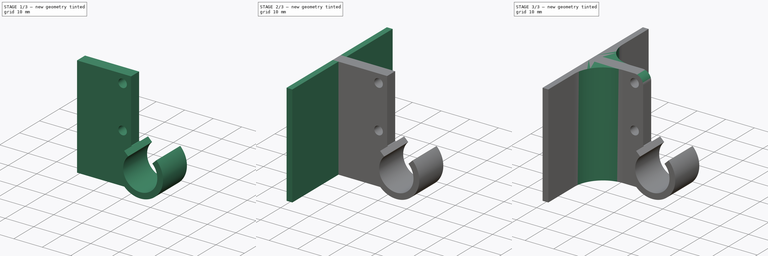
[diagram: build sequence overview — one tinted view per stage of 3, left to right]
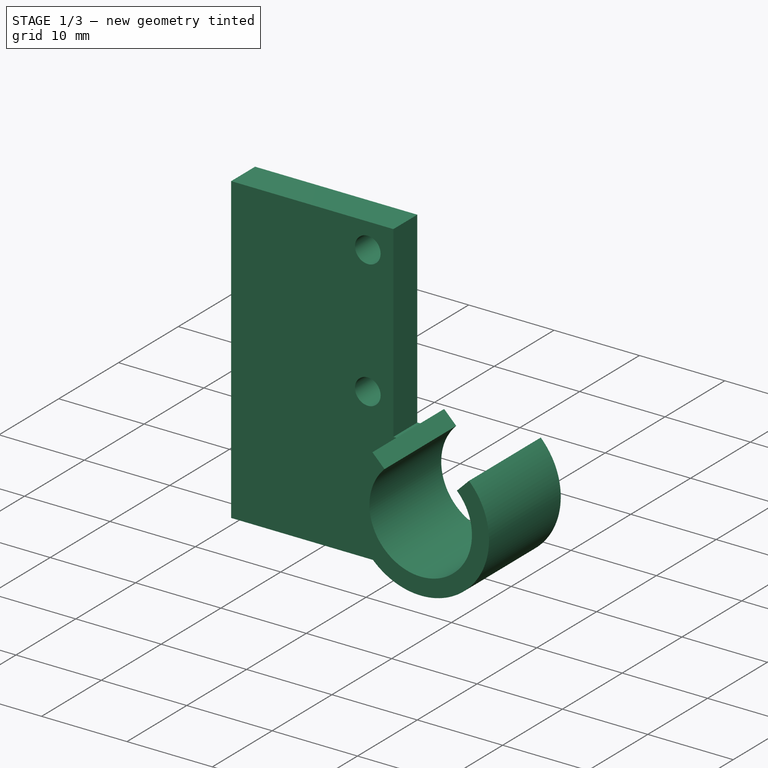
[diagram: stage 1 of 3 — iso view after this stage's code; geometry added in this stage tinted green]
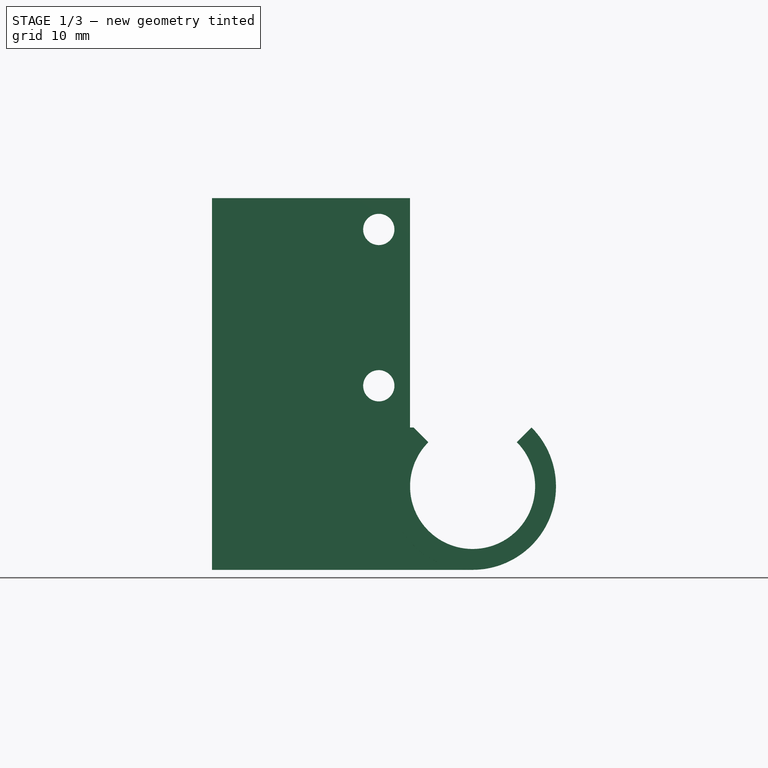
[diagram: stage 1 of 3 — front view after this stage's code; geometry added in this stage tinted green]
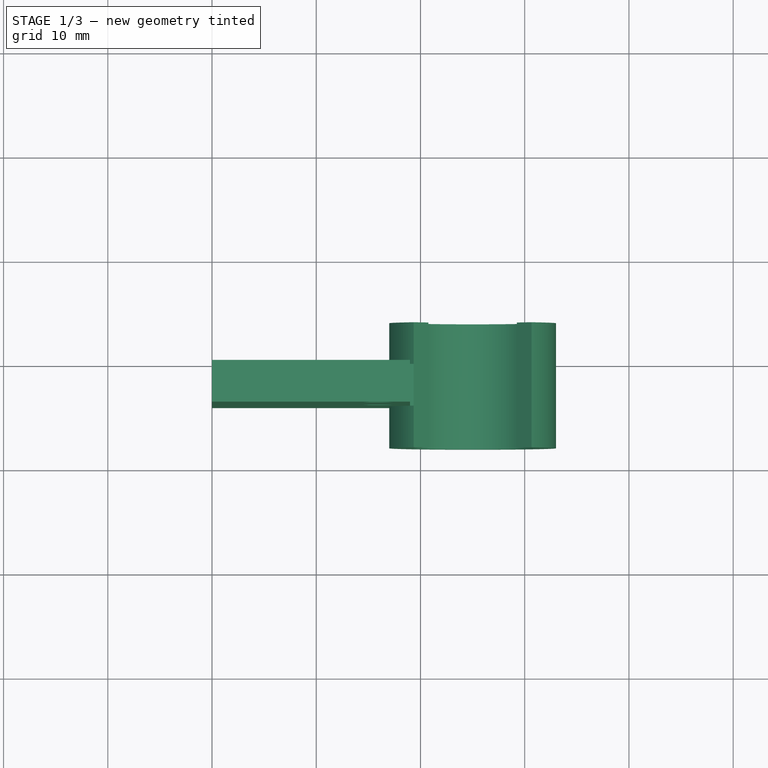
[diagram: stage 1 of 3 — top view after this stage's code; geometry added in this stage tinted green]
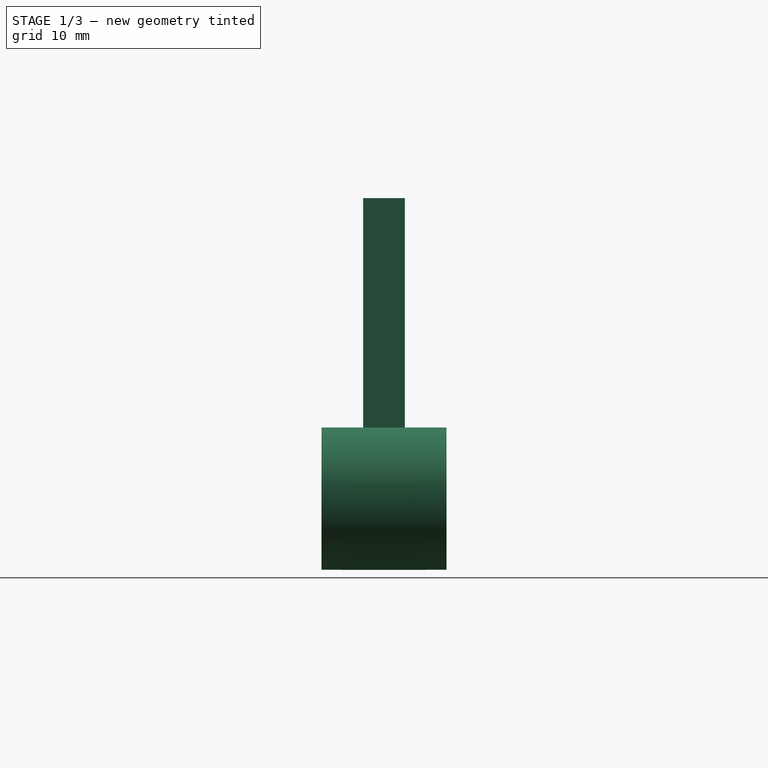
[diagram: stage 1 of 3 — right view after this stage's code; geometry added in this stage tinted green]
FCSTD DOCUMENT  (FreeCAD 0.16R6707 (Git))
Label: Laser_Greyscale_Mount
License: All rights reserved
LicenseURL: http://en.wikipedia.org/wiki/All_rights_reserved
objects: Sketcher::SketchObject×3, PartDesign::Pad×3, PartDesign::Fillet×2
note: 11 computed .brp shape members not serialized (recipe doc carries the construction recipe); baked Part::Feature solids carry a one-line shape summary decoded from their .brp

FEATURE [Sketcher::SketchObject] Sketch
  Placement = pos=(0,0,0) rot=(1,0,0;1.5708rad)
  sketch-geometry (13):
    g0: ArcOfCircle CenterX=25 CenterY=8 CenterZ=0 NormalX=0 NormalY=0 NormalZ=1 Radius=6 StartAngle=2.35619 EndAngle=7.06858
    g1: Circle CenterX=16 CenterY=32.6569 CenterZ=0 NormalX=0 NormalY=0 NormalZ=1 Radius=1.5
    g2: Circle CenterX=16 CenterY=17.6569 CenterZ=0 NormalX=0 NormalY=0 NormalZ=1 Radius=1.5
    g3: LineSegment [constr] StartX=16 StartY=32.6569 StartZ=0 EndX=16 EndY=17.6569 EndZ=0
    g4: LineSegment StartX=0 StartY=35.6569 StartZ=0 EndX=19 EndY=35.6569 EndZ=0
    g5: LineSegment StartX=19 StartY=35.6569 StartZ=0 EndX=19 EndY=13.6569 EndZ=0
    g6: LineSegment StartX=19 StartY=13.6569 StartZ=0 EndX=19.3431 EndY=13.6569 EndZ=0
    g7: LineSegment StartX=19.3431 StartY=13.6569 StartZ=0 EndX=20.7574 EndY=12.2426 EndZ=0
    g8: ArcOfCircle CenterX=25 CenterY=8 CenterZ=0 NormalX=0 NormalY=0 NormalZ=1 Radius=8 StartAngle=4.71239 EndAngle=7.06858
    g9: LineSegment StartX=30.6569 StartY=13.6569 StartZ=0 EndX=29.2426 EndY=12.2426 EndZ=0
    g10: LineSegment StartX=0 StartY=35.6569 StartZ=0 EndX=0 EndY=0 EndZ=0
    g11: LineSegment StartX=0 StartY=0 StartZ=0 EndX=25 EndY=0 EndZ=0
    g12: LineSegment [constr] StartX=20.7574 StartY=12.2426 StartZ=0 EndX=29.2426 EndY=12.2426 EndZ=0
  constraints (40):
    c: Radius(g0) = 6
    c: Coincident(g3,g1)
    c: Vertical(g3)
    c: Coincident(g2,g3)
    c: Equal(g2,g1)
    c: Radius(g1) = 1.5
    c: Distance(g2,g1) = 15
    c: DistanceX(g2,g0) = 9
    c: PointOnObject(g4,g-2)
    c: Horizontal(g4)
    c: Coincident(g4,g5)
    c: Vertical(g5)
    c: Coincident(g5,g6)
    c: Horizontal(g6)
    c: Coincident(g6,g7)
    c: Coincident(g0,g7)
    c: Perpendicular(g0,g7)
    c: Coincident(g8,g0)
    c: PointOnObject(g8,g-1)
    c: Radius(g8) = 8
    c: Coincident(g9,g8)
    c: Coincident(g0,g9)
    c: Perpendicular(g0,g9)
    c: DistanceX(g-1,g0) = 25
    c: DistanceY(g1,g4) = 3
    c: DistanceX(g1,g4) = 3
    c: Vertical(g10)
    c: Coincident(g11,g10)
    c: Horizontal(g11)
    c: Coincident(g11,g8)
    c: Coincident(g10,g-1)
    c: Coincident(g10,g4)
    c: Tangent(g11,g8)
    c: DistanceY(g5,g2) = 4
    c: Equal(g9,g7)
    c: DistanceY(g10,g10) = 35.6569
    c: Angle(g9,g7) = 1.5708
    c: Coincident(g12,g0)
    c: Coincident(g12,g0)
    c: Horizontal(g12)
FEATURE [PartDesign::Pad] Pad
  Length = 4
  Length2 = 100
  Placement = pos=(0,0,0) rot=(1,0,0;1.5708rad)
  Sketch = -> Sketch
  Type = 0
FEATURE [Sketcher::SketchObject] Sketch001
  ExternalGeometry = -> [Pad]
  Placement = pos=(0,-4,0) rot=(1,0,0;1.5708rad)
  Support = -> Pad [Face13]
  sketch-geometry (4):
    g0: ArcOfCircle CenterX=25 CenterY=8 CenterZ=0 NormalX=0 NormalY=0 NormalZ=1 Radius=6 StartAngle=2.35619 EndAngle=7.06858
    g1: ArcOfCircle CenterX=25 CenterY=8 CenterZ=0 NormalX=0 NormalY=0 NormalZ=1 Radius=8 StartAngle=2.35619 EndAngle=7.06858
    g2: LineSegment StartX=20.7574 StartY=12.2426 StartZ=0 EndX=19.3431 EndY=13.6569 EndZ=0
    g3: LineSegment StartX=30.6569 StartY=13.6569 StartZ=0 EndX=29.2426 EndY=12.2426 EndZ=0
  constraints (10):
    c: Coincident(g0,g-5)
    c: Coincident(g0,g-3)
    c: Coincident(g1,g0)
    c: Coincident(g1,g-5)
    c: Coincident(g2,g0)
    c: Coincident(g3,g1)
    c: Coincident(g3,g0)
    c: Coincident(g2,g1)
    c: Parallel(g-4,g3)
    c: Parallel(g2,g-3)
FEATURE [PartDesign::Pad] Pad001
  Length = 4
  Length2 = 8
  Placement = pos=(0,0,0) rot=(1,0,0;1.5708rad)
  Sketch = -> Sketch001
  Type = 4
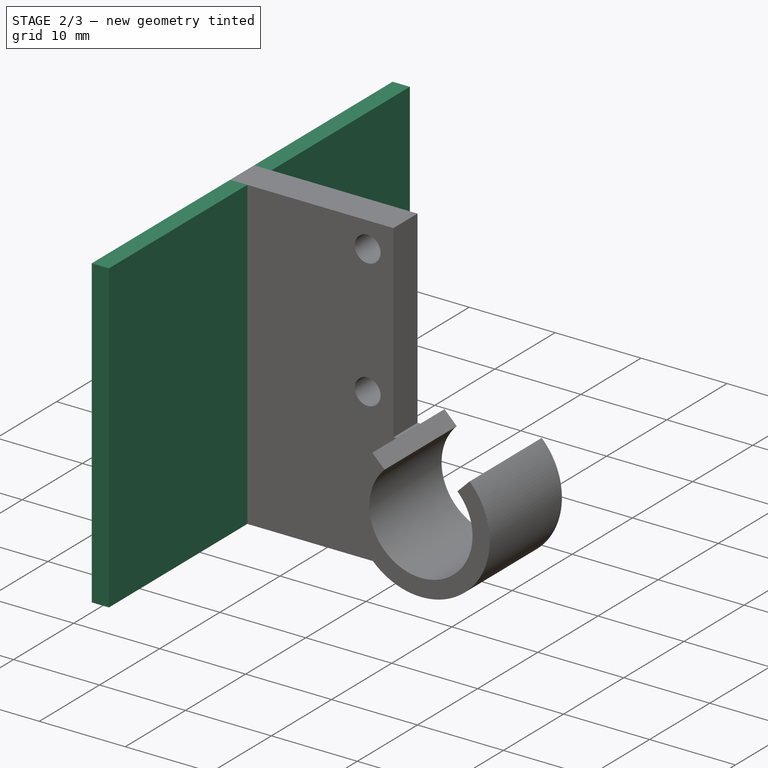
[diagram: stage 2 of 3 — iso view after this stage's code; geometry added in this stage tinted green]
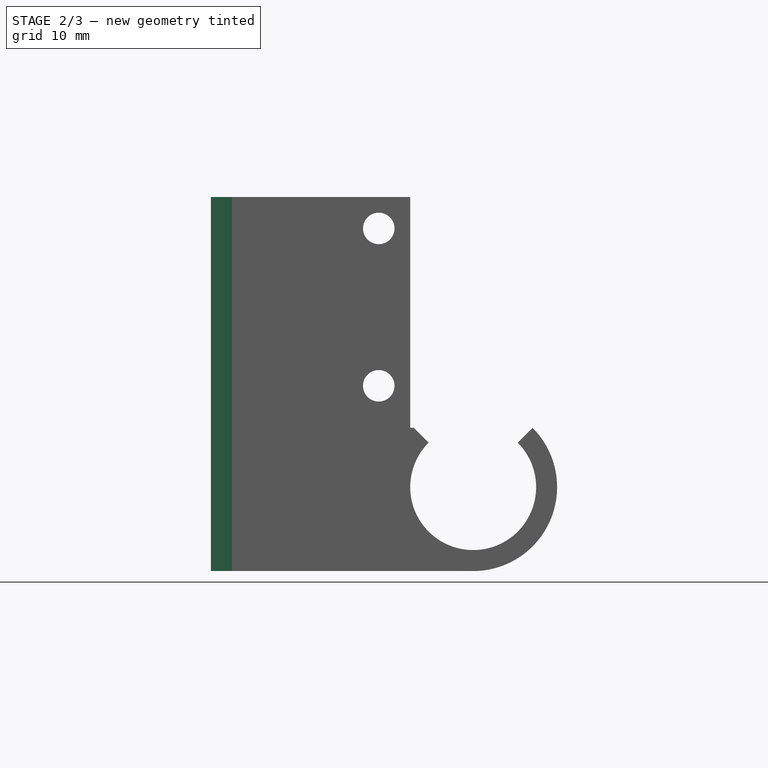
[diagram: stage 2 of 3 — front view after this stage's code; geometry added in this stage tinted green]
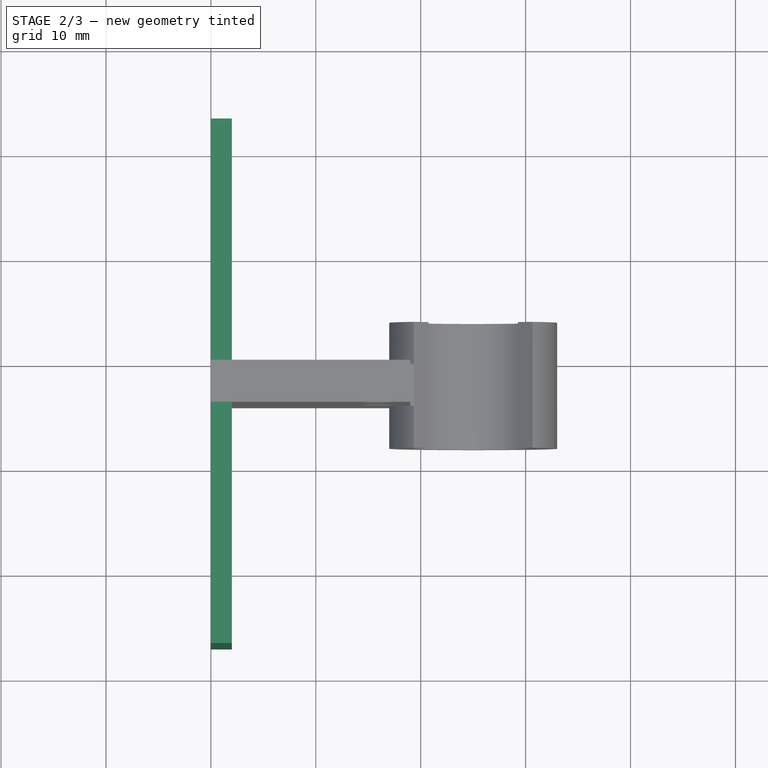
[diagram: stage 2 of 3 — top view after this stage's code; geometry added in this stage tinted green]
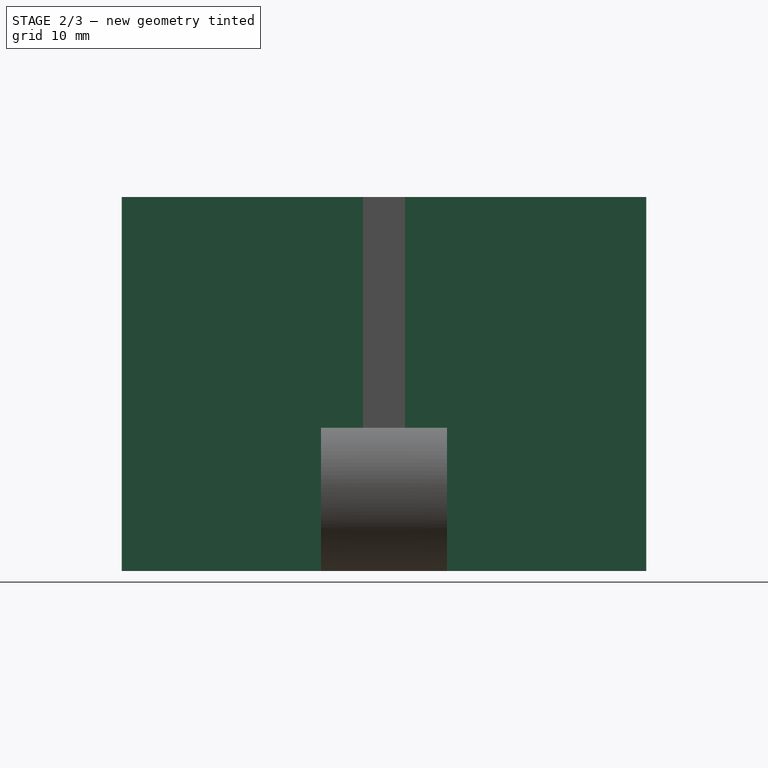
[diagram: stage 2 of 3 — right view after this stage's code; geometry added in this stage tinted green]
FEATURE [Sketcher::SketchObject] Sketch002
  ExternalGeometry = -> [Pad001]
  Placement = pos=(0,0,0) rot=(0.707107,0,-0.707107;3.14159rad)
  Support = -> Pad001 [Face2]
  sketch-geometry (4):
    g0: LineSegment StartX=0 StartY=-23 StartZ=0 EndX=-35.6569 EndY=-23 EndZ=0
    g1: LineSegment StartX=-35.6569 StartY=-23 StartZ=0 EndX=-35.6569 EndY=27 EndZ=0
    g2: LineSegment StartX=-35.6569 StartY=27 StartZ=0 EndX=0 EndY=27 EndZ=0
    g3: LineSegment StartX=0 StartY=27 StartZ=0 EndX=0 EndY=-23 EndZ=0
  constraints (12):
    c: Coincident(g0,g1)
    c: Coincident(g1,g2)
    c: Coincident(g2,g3)
    c: Coincident(g3,g0)
    c: Horizontal(g0)
    c: Horizontal(g2)
    c: Vertical(g1)
    c: Vertical(g3)
    c: PointOnObject(g0,g-2)
    c: PointOnObject(g-3,g1)
    c: Distance(g3) = 50
    c: Distance(g-1,g0) = 23
FEATURE [PartDesign::Pad] Pad002
  Length = 2
  Length2 = 100
  Placement = pos=(0,0,0) rot=(1,0,0;1.5708rad)
  Reversed = true
  Sketch = -> Sketch002
  Type = 0
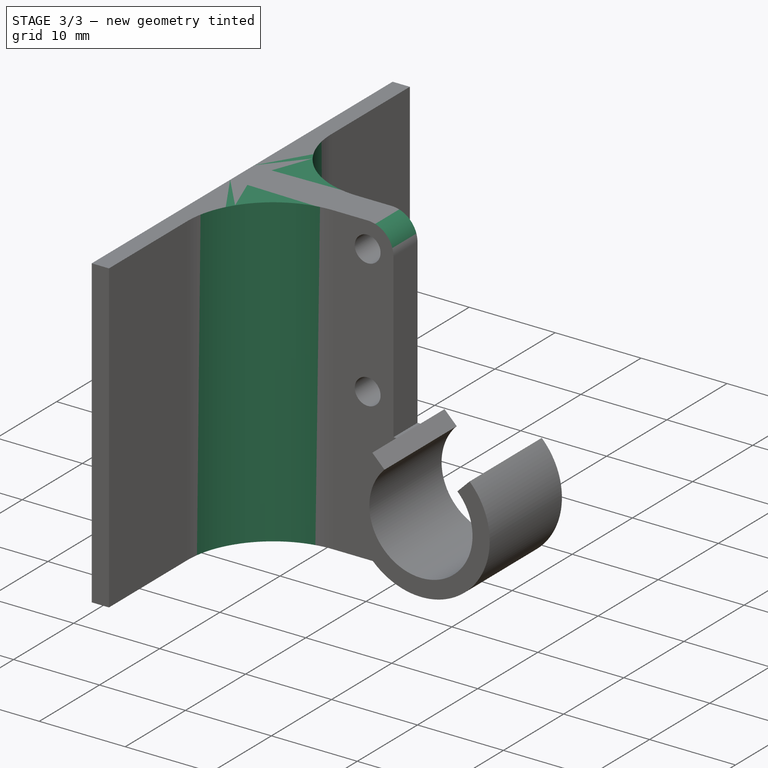
[diagram: stage 3 of 3 — iso view after this stage's code; geometry added in this stage tinted green]
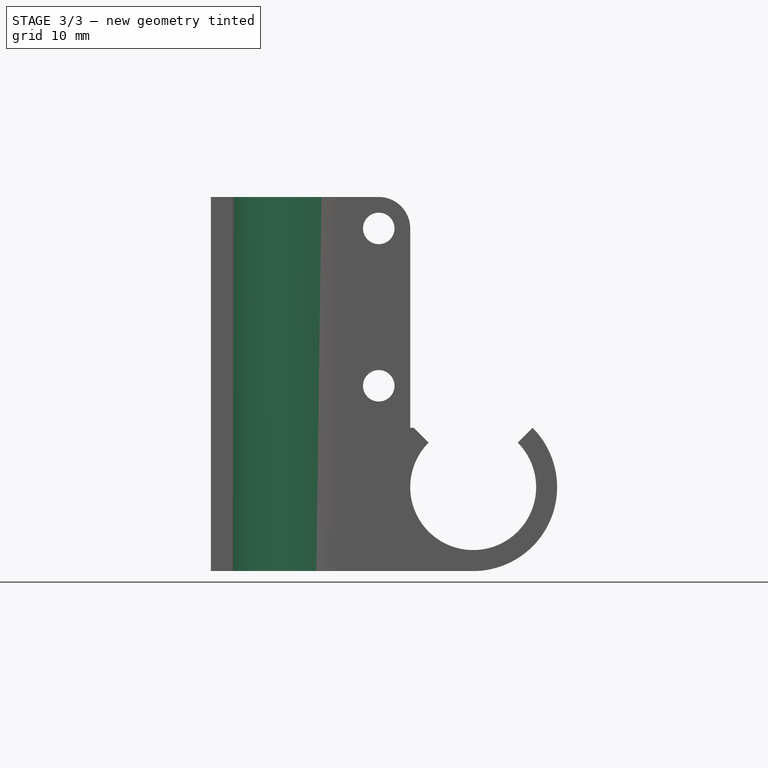
[diagram: stage 3 of 3 — front view after this stage's code; geometry added in this stage tinted green]
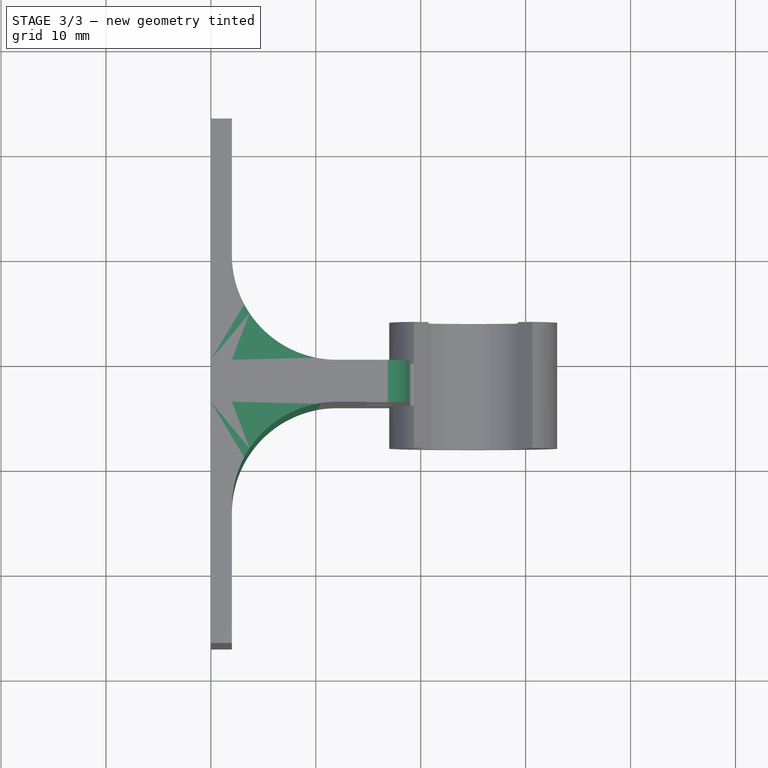
[diagram: stage 3 of 3 — top view after this stage's code; geometry added in this stage tinted green]
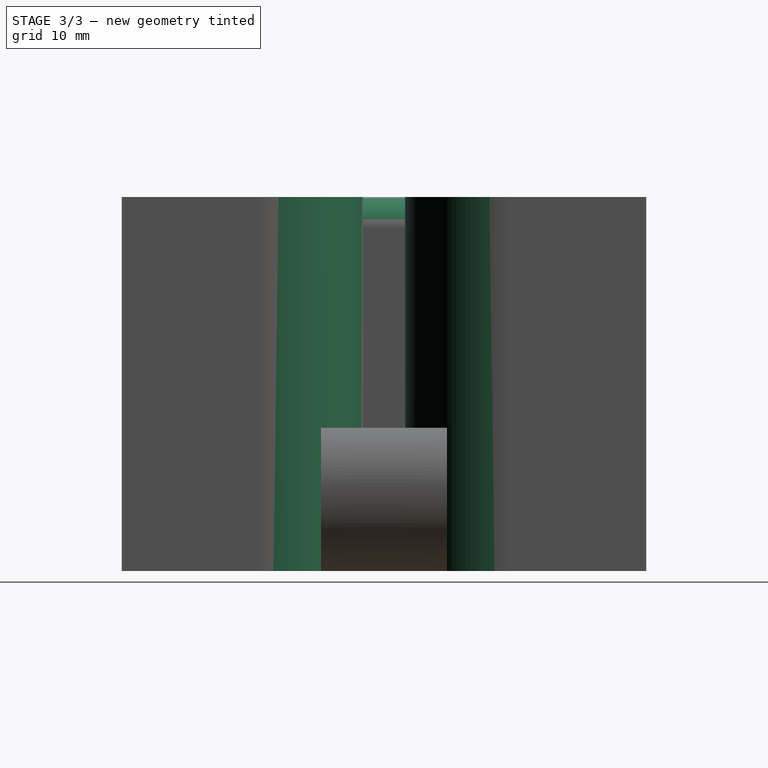
[diagram: stage 3 of 3 — right view after this stage's code; geometry added in this stage tinted green]
FEATURE [PartDesign::Fillet] Fillet
  Base = -> Pad002 [Edge18,Edge13]
  Placement = pos=(0,0,0) rot=(1,0,0;1.5708rad)
  Radius = 10
FEATURE [PartDesign::Fillet] Fillet001
  Base = -> Fillet [Edge3]
  Placement = pos=(0,0,0) rot=(1,0,0;1.5708rad)
  Radius = 3
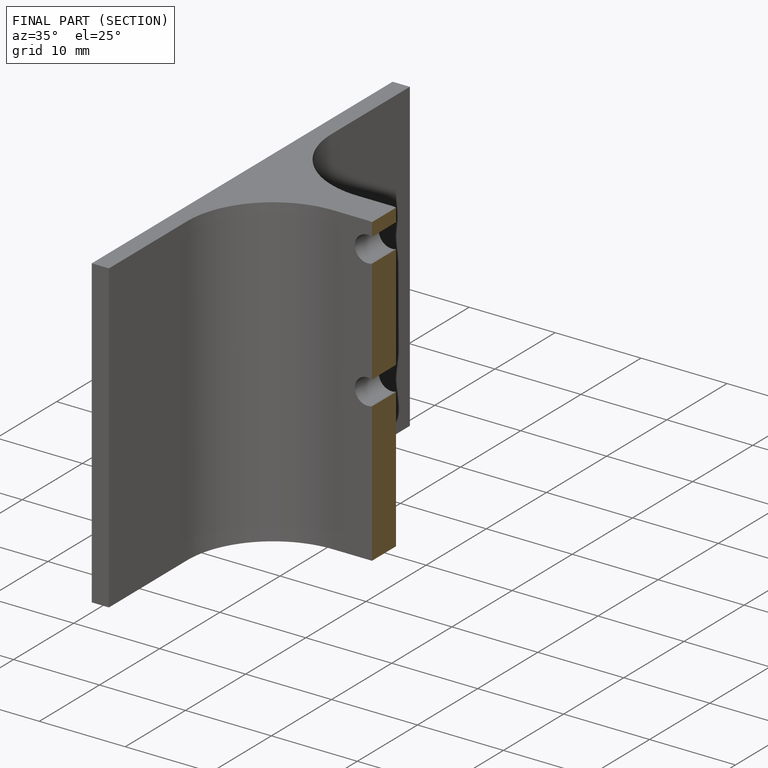
[diagram: finished part — half-section view (interior)]
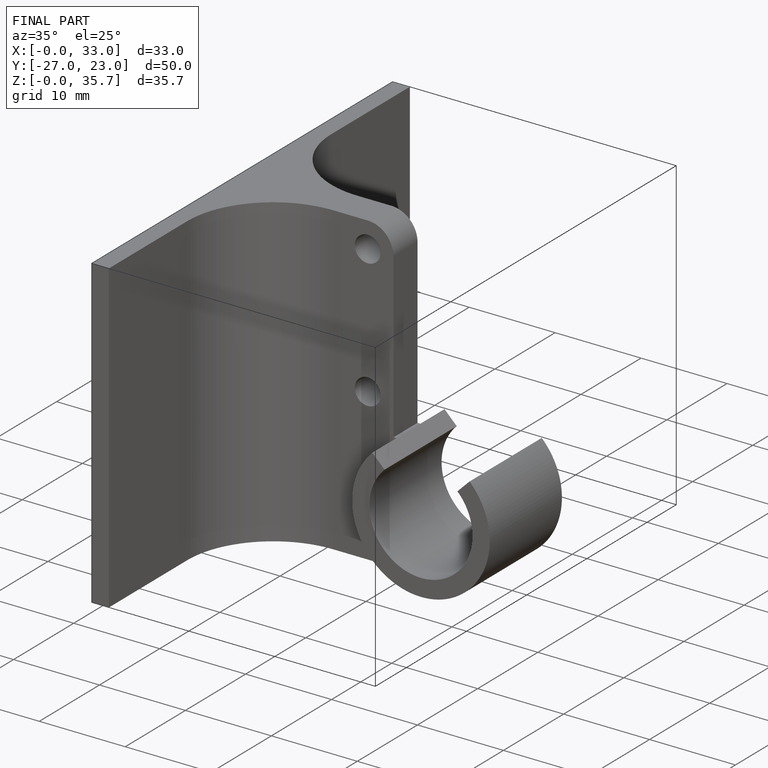
[diagram: finished part — iso view with bounding-box wireframe]
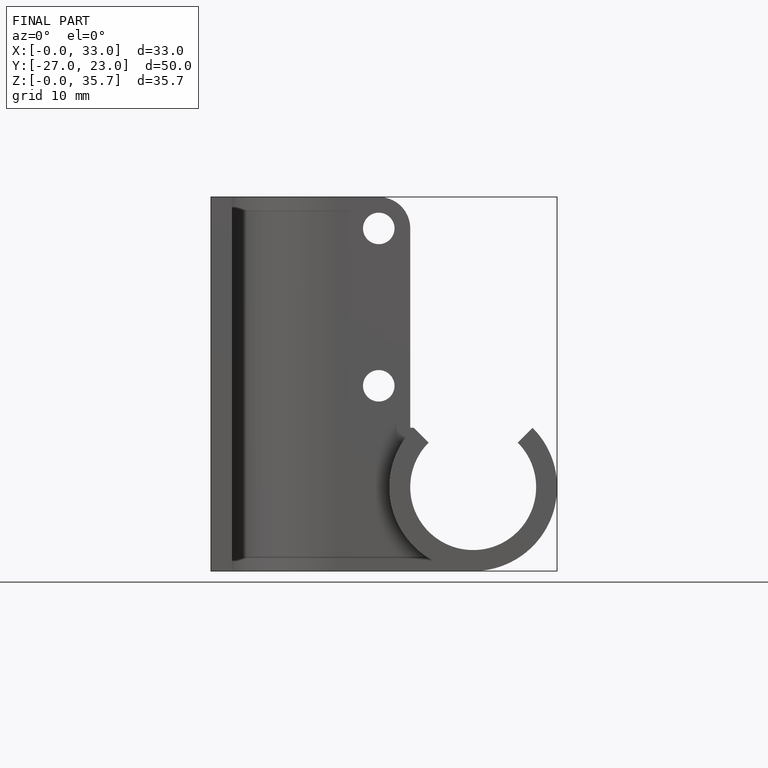
[diagram: finished part — front view with bounding-box wireframe]
